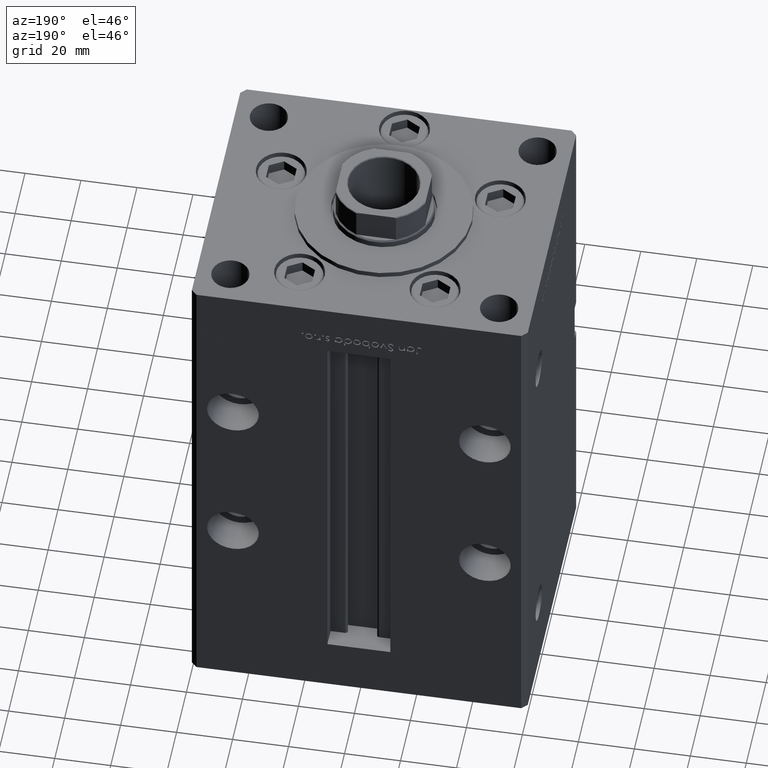
[diagram: clean part render]
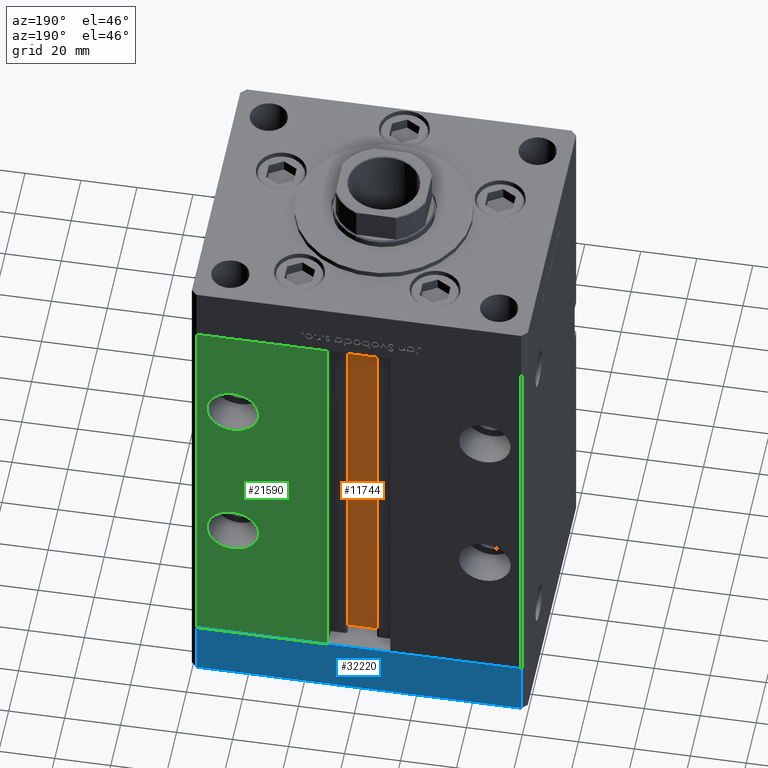
[diagram: same view with three faces highlighted in distinct colors, each labeled with its STEP entity id]
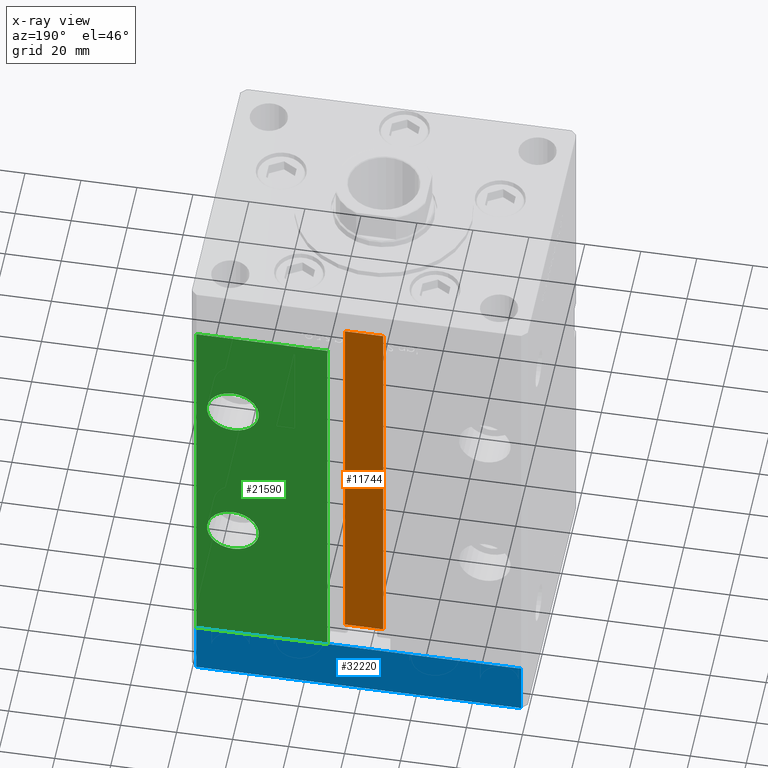
[diagram: x-ray of the same camera — body ghosted, the three highlighted faces saturated]
A machine part, auxiliary view with three faces highlighted in distinct colors.
The next image is the same camera in x-ray (body ghosted, the three faces saturated) — at least one of them is partly hidden behind the body in this view.
Their STEP definitions:

[orange] entity #11744 — the highlighted planar face has unit normal (0, -1, 0).
#112 = LINE ( 'NONE', #41957, #423 ) ;
#423 = VECTOR ( 'NONE', #5182, 1000.000000000000000 ) ;
#1107 = CARTESIAN_POINT ( 'NONE',  ( 6.876153656360465050, 40.49999999999987210, 0.000000000000000000 ) ) ;
#2760 = VECTOR ( 'NONE', #50480, 1000.000000000000000 ) ;
#3483 = VERTEX_POINT ( 'NONE', #31928 ) ;
#4728 = LINE ( 'NONE', #28887, #45745 ) ;
#5182 = DIRECTION ( 'NONE',  ( -1.000000000000000000, 0.000000000000000000, 0.000000000000000000 ) ) ;
#8780 = LINE ( 'NONE', #9050, #9660 ) ;
#9050 = CARTESIAN_POINT ( 'NONE',  ( -6.876153656360465050, 40.49999999999987210, 0.000000000000000000 ) ) ;
#9250 = CARTESIAN_POINT ( 'NONE',  ( 6.876153656360465050, 40.49999999999987210, 0.000000000000000000 ) ) ;
#9660 = VECTOR ( 'NONE', #38020, 1000.000000000000000 ) ;
#11744 = ADVANCED_FACE ( 'NONE', ( #13292 ), #45480, .F. ) ;
#12663 = CARTESIAN_POINT ( 'NONE',  ( 6.876153656360465050, 40.49999999999987210, 148.5000000000000000 ) ) ;
#12764 = DIRECTION ( 'NONE',  ( 0.000000000000000000, -1.000000000000000000, -0.000000000000000000 ) ) ;
#13292 = FACE_OUTER_BOUND ( 'NONE', #41095, .T. ) ;
#14703 = ORIENTED_EDGE ( 'NONE', *, *, #39358, .T. ) ;
#14847 = CARTESIAN_POINT ( 'NONE',  ( -6.876153656360465050, 40.49999999999987210, 148.5000000000000000 ) ) ;
#15951 = EDGE_CURVE ( 'NONE', #33380, #29560, #112, .T. ) ;
#21718 = AXIS2_PLACEMENT_3D ( 'NONE', #9250, #12764, #25631 ) ;
#23610 = ORIENTED_EDGE ( 'NONE', *, *, #15951, .F. ) ;
#24729 = ORIENTED_EDGE ( 'NONE', *, *, #41808, .F. ) ;
#25300 = LINE ( 'NONE', #1107, #2760 ) ;
#25631 = DIRECTION ( 'NONE',  ( 0.000000000000000000, 0.000000000000000000, -1.000000000000000000 ) ) ;
#25910 = DIRECTION ( 'NONE',  ( -0.000000000000000000, -0.000000000000000000, 1.000000000000000000 ) ) ;
#28887 = CARTESIAN_POINT ( 'NONE',  ( 6.876153656360465050, 40.49999999999987210, 0.000000000000000000 ) ) ;
#29560 = VERTEX_POINT ( 'NONE', #14847 ) ;
#31928 = CARTESIAN_POINT ( 'NONE',  ( -6.876153656360465050, 40.49999999999987210, 0.000000000000000000 ) ) ;
#33380 = VERTEX_POINT ( 'NONE', #12663 ) ;
#37453 = EDGE_CURVE ( 'NONE', #3483, #44850, #25300, .T. ) ;
#38020 = DIRECTION ( 'NONE',  ( -0.000000000000000000, -0.000000000000000000, 1.000000000000000000 ) ) ;
#39358 = EDGE_CURVE ( 'NONE', #3483, #29560, #8780, .T. ) ;
#41095 = EDGE_LOOP ( 'NONE', ( #24729, #48145, #14703, #23610 ) ) ;
#41808 = EDGE_CURVE ( 'NONE', #44850, #33380, #4728, .T. ) ;
#41957 = CARTESIAN_POINT ( 'NONE',  ( 0.000000000000000000, 40.49999999999987210, 148.5000000000000000 ) ) ;
#44850 = VERTEX_POINT ( 'NONE', #45949 ) ;
#45480 = PLANE ( 'NONE',  #21718 ) ;
#45745 = VECTOR ( 'NONE', #25910, 1000.000000000000000 ) ;
#45949 = CARTESIAN_POINT ( 'NONE',  ( 6.876153656360465050, 40.49999999999987210, 0.000000000000000000 ) ) ;
#48145 = ORIENTED_EDGE ( 'NONE', *, *, #37453, .F. ) ;
#50480 = DIRECTION ( 'NONE',  ( 1.000000000000000000, -0.000000000000000000, -0.000000000000000000 ) ) ;

[blue] entity #32220 — the highlighted planar face has unit normal (-0, 1, 0).
#1136 = DIRECTION ( 'NONE',  ( -1.000000000000000000, -2.392722035830079958E-16, 0.000000000000000000 ) ) ;
#1293 = ORIENTED_EDGE ( 'NONE', *, *, #30497, .T. ) ;
#4270 = VERTEX_POINT ( 'NONE', #6121 ) ;
#4898 = CARTESIAN_POINT ( 'NONE',  ( 57.99999999999993605, 51.00000000000000711, -20.00000000000000000 ) ) ;
#4912 = DIRECTION ( 'NONE',  ( -2.392722035830079958E-16, 1.000000000000000000, 0.000000000000000000 ) ) ;
#6121 = CARTESIAN_POINT ( 'NONE',  ( 57.99999999999993605, 51.00000000000000711, 0.000000000000000000 ) ) ;
#6587 = LINE ( 'NONE', #18921, #6769 ) ;
#6769 = VECTOR ( 'NONE', #31518, 1000.000000000000000 ) ;
#7100 = EDGE_LOOP ( 'NONE', ( #41632, #37600, #1293, #47973 ) ) ;
#7399 = VERTEX_POINT ( 'NONE', #17998 ) ;
#7578 = DIRECTION ( 'NONE',  ( 0.000000000000000000, 0.000000000000000000, 1.000000000000000000 ) ) ;
#8937 = PLANE ( 'NONE',  #31020 ) ;
#11324 = VECTOR ( 'NONE', #44509, 1000.000000000000000 ) ;
#12976 = VECTOR ( 'NONE', #46977, 1000.000000000000000 ) ;
#13811 = VERTEX_POINT ( 'NONE', #47923 ) ;
#16465 = CARTESIAN_POINT ( 'NONE',  ( 57.99999999999993605, 51.00000000000000711, -20.00000000000000000 ) ) ;
#17998 = CARTESIAN_POINT ( 'NONE',  ( -57.99999999999999289, 50.99999999999997868, 0.000000000000000000 ) ) ;
#18495 = VECTOR ( 'NONE', #7578, 1000.000000000000000 ) ;
#18921 = CARTESIAN_POINT ( 'NONE',  ( 57.99999999999993605, 51.00000000000000711, 0.000000000000000000 ) ) ;
#23986 = EDGE_CURVE ( 'NONE', #4270, #7399, #6587, .T. ) ;
#27620 = LINE ( 'NONE', #43987, #11324 ) ;
#30497 = EDGE_CURVE ( 'NONE', #48437, #13811, #38164, .T. ) ;
#31020 = AXIS2_PLACEMENT_3D ( 'NONE', #16465, #4912, #1136 ) ;
#31518 = DIRECTION ( 'NONE',  ( -1.000000000000000000, -2.392722035830079958E-16, 0.000000000000000000 ) ) ;
#32220 = ADVANCED_FACE ( 'NONE', ( #41681 ), #8937, .T. ) ;
#32849 = EDGE_CURVE ( 'NONE', #13811, #7399, #27620, .T. ) ;
#36569 = CARTESIAN_POINT ( 'NONE',  ( 57.99999999999993605, 51.00000000000000711, -20.00000000000000000 ) ) ;
#37600 = ORIENTED_EDGE ( 'NONE', *, *, #51899, .F. ) ;
#38164 = LINE ( 'NONE', #4898, #12976 ) ;
#41632 = ORIENTED_EDGE ( 'NONE', *, *, #23986, .F. ) ;
#41681 = FACE_OUTER_BOUND ( 'NONE', #7100, .T. ) ;
#42061 = CARTESIAN_POINT ( 'NONE',  ( 57.99999999999993605, 51.00000000000000711, -20.00000000000000000 ) ) ;
#43987 = CARTESIAN_POINT ( 'NONE',  ( -57.99999999999999289, 50.99999999999997868, -20.00000000000000000 ) ) ;
#44509 = DIRECTION ( 'NONE',  ( 0.000000000000000000, 0.000000000000000000, 1.000000000000000000 ) ) ;
#46977 = DIRECTION ( 'NONE',  ( -1.000000000000000000, -2.392722035830079958E-16, 0.000000000000000000 ) ) ;
#47923 = CARTESIAN_POINT ( 'NONE',  ( -57.99999999999999289, 50.99999999999997868, -20.00000000000000000 ) ) ;
#47973 = ORIENTED_EDGE ( 'NONE', *, *, #32849, .T. ) ;
#48437 = VERTEX_POINT ( 'NONE', #42061 ) ;
#49170 = LINE ( 'NONE', #36569, #18495 ) ;
#51899 = EDGE_CURVE ( 'NONE', #48437, #4270, #49170, .T. ) ;

[green] entity #21590 — the highlighted planar face has unit normal (0, -1, 0).
#101 = CARTESIAN_POINT ( 'NONE',  ( 11.24999999999999822, 51.00000000000000711, 0.000000000000000000 ) ) ;
#833 = ORIENTED_EDGE ( 'NONE', *, *, #4647, .F. ) ;
#1119 = EDGE_CURVE ( 'NONE', #52033, #38152, #19745, .T. ) ;
#2394 = ORIENTED_EDGE ( 'NONE', *, *, #51097, .T. ) ;
#3144 = LINE ( 'NONE', #43938, #9742 ) ;
#3646 = AXIS2_PLACEMENT_3D ( 'NONE', #8395, #37892, #45415 ) ;
#4085 = CARTESIAN_POINT ( 'NONE',  ( 11.24999999999999112, 51.00000000000000711, 148.5000000000000000 ) ) ;
#4647 = EDGE_CURVE ( 'NONE', #51425, #15536, #28529, .T. ) ;
#5456 = EDGE_CURVE ( 'NONE', #15536, #51425, #19976, .T. ) ;
#6621 = VERTEX_POINT ( 'NONE', #21686 ) ;
#6864 = EDGE_CURVE ( 'NONE', #38152, #49757, #3144, .T. ) ;
#7014 = CARTESIAN_POINT ( 'NONE',  ( 57.99999999999999289, 51.00000000000000711, 0.000000000000000000 ) ) ;
#7310 = DIRECTION ( 'NONE',  ( 0.000000000000000000, 0.000000000000000000, 1.000000000000000000 ) ) ;
#7406 = DIRECTION ( 'NONE',  ( 1.000000000000000000, 0.000000000000000000, 0.000000000000000000 ) ) ;
#7881 = DIRECTION ( 'NONE',  ( -1.000000000000000000, 0.000000000000000000, 0.000000000000000000 ) ) ;
#8147 = ORIENTED_EDGE ( 'NONE', *, *, #8660, .T. ) ;
#8395 = CARTESIAN_POINT ( 'NONE',  ( 45.00000000000000000, 51.00000000000000711, 111.5000000000000000 ) ) ;
#8660 = EDGE_CURVE ( 'NONE', #49757, #6621, #24531, .T. ) ;
#8874 = PLANE ( 'NONE',  #49598 ) ;
#9742 = VECTOR ( 'NONE', #51987, 1000.000000000000000 ) ;
#10961 = DIRECTION ( 'NONE',  ( 0.000000000000000000, 0.000000000000000000, -1.000000000000000000 ) ) ;
#11391 = CIRCLE ( 'NONE', #29393, 9.250000000000001776 ) ;
#12266 = VERTEX_POINT ( 'NONE', #22184 ) ;
#12990 = ORIENTED_EDGE ( 'NONE', *, *, #21310, .F. ) ;
#14547 = DIRECTION ( 'NONE',  ( 0.000000000000000000, 0.000000000000000000, -1.000000000000000000 ) ) ;
#15536 = VERTEX_POINT ( 'NONE', #31566 ) ;
#19501 = DIRECTION ( 'NONE',  ( -0.000000000000000000, -0.000000000000000000, 1.000000000000000000 ) ) ;
#19745 = LINE ( 'NONE', #39883, #26668 ) ;
#19976 = CIRCLE ( 'NONE', #22520, 9.249999999999994671 ) ;
#20826 = EDGE_LOOP ( 'NONE', ( #52675, #833 ) ) ;
#21310 = EDGE_CURVE ( 'NONE', #12266, #43337, #31532, .T. ) ;
#21590 = ADVANCED_FACE ( 'NONE', ( #45626, #40830, #37840 ), #8874, .F. ) ;
#21686 = CARTESIAN_POINT ( 'NONE',  ( 11.24999999999999822, 51.00000000000000711, 0.000000000000000000 ) ) ;
#22184 = CARTESIAN_POINT ( 'NONE',  ( 45.00000000000000000, 51.00000000000000711, 60.75000000000000000 ) ) ;
#22520 = AXIS2_PLACEMENT_3D ( 'NONE', #48075, #27422, #7310 ) ;
#24531 = LINE ( 'NONE', #44637, #50035 ) ;
#25255 = DIRECTION ( 'NONE',  ( 0.000000000000000000, -1.000000000000000000, 0.000000000000000000 ) ) ;
#25866 = EDGE_LOOP ( 'NONE', ( #8147, #2394, #37146, #40848 ) ) ;
#26668 = VECTOR ( 'NONE', #7406, 1000.000000000000000 ) ;
#27422 = DIRECTION ( 'NONE',  ( 0.000000000000000000, 1.000000000000000000, 0.000000000000000000 ) ) ;
#28529 = CIRCLE ( 'NONE', #3646, 9.249999999999994671 ) ;
#29393 = AXIS2_PLACEMENT_3D ( 'NONE', #51740, #31336, #10961 ) ;
#29567 = ORIENTED_EDGE ( 'NONE', *, *, #39136, .F. ) ;
#31324 = VECTOR ( 'NONE', #19501, 1000.000000000000000 ) ;
#31336 = DIRECTION ( 'NONE',  ( 0.000000000000000000, 1.000000000000000000, -0.000000000000000000 ) ) ;
#31532 = CIRCLE ( 'NONE', #49566, 9.250000000000001776 ) ;
#31566 = CARTESIAN_POINT ( 'NONE',  ( 45.00000000000000000, 51.00000000000000711, 120.7500000000000000 ) ) ;
#34771 = CARTESIAN_POINT ( 'NONE',  ( 57.99999999999999289, 51.00000000000000711, 148.5000000000000000 ) ) ;
#35204 = CARTESIAN_POINT ( 'NONE',  ( 45.00000000000000000, 51.00000000000000711, 51.50000000000000000 ) ) ;
#35414 = CARTESIAN_POINT ( 'NONE',  ( 45.00000000000000000, 51.00000000000000711, 102.2500000000000142 ) ) ;
#37064 = CARTESIAN_POINT ( 'NONE',  ( -11.24999999999999822, 51.00000000000000711, 148.5000000000000000 ) ) ;
#37111 = EDGE_LOOP ( 'NONE', ( #12990, #29567 ) ) ;
#37146 = ORIENTED_EDGE ( 'NONE', *, *, #1119, .T. ) ;
#37335 = DIRECTION ( 'NONE',  ( 0.000000000000000000, -0.000000000000000000, -1.000000000000000000 ) ) ;
#37840 = FACE_OUTER_BOUND ( 'NONE', #25866, .T. ) ;
#37892 = DIRECTION ( 'NONE',  ( 0.000000000000000000, 1.000000000000000000, 0.000000000000000000 ) ) ;
#38152 = VERTEX_POINT ( 'NONE', #34771 ) ;
#39136 = EDGE_CURVE ( 'NONE', #43337, #12266, #11391, .T. ) ;
#39883 = CARTESIAN_POINT ( 'NONE',  ( -11.24999999999999822, 51.00000000000000711, 148.5000000000000000 ) ) ;
#39906 = LINE ( 'NONE', #101, #31324 ) ;
#40830 = FACE_BOUND ( 'NONE', #20826, .T. ) ;
#40848 = ORIENTED_EDGE ( 'NONE', *, *, #6864, .T. ) ;
#43337 = VERTEX_POINT ( 'NONE', #44222 ) ;
#43938 = CARTESIAN_POINT ( 'NONE',  ( 57.99999999999999289, 51.00000000000000711, 148.5000000000000000 ) ) ;
#44222 = CARTESIAN_POINT ( 'NONE',  ( 45.00000000000000000, 51.00000000000000711, 42.24999999999999289 ) ) ;
#44637 = CARTESIAN_POINT ( 'NONE',  ( -11.24999999999999822, 51.00000000000000711, 0.000000000000000000 ) ) ;
#45415 = DIRECTION ( 'NONE',  ( 0.000000000000000000, 0.000000000000000000, 1.000000000000000000 ) ) ;
#45626 = FACE_BOUND ( 'NONE', #37111, .T. ) ;
#48075 = CARTESIAN_POINT ( 'NONE',  ( 45.00000000000000000, 51.00000000000000711, 111.5000000000000000 ) ) ;
#49566 = AXIS2_PLACEMENT_3D ( 'NONE', #35204, #51572, #14547 ) ;
#49598 = AXIS2_PLACEMENT_3D ( 'NONE', #37064, #25255, #37335 ) ;
#49757 = VERTEX_POINT ( 'NONE', #7014 ) ;
#50035 = VECTOR ( 'NONE', #7881, 1000.000000000000000 ) ;
#51097 = EDGE_CURVE ( 'NONE', #6621, #52033, #39906, .T. ) ;
#51425 = VERTEX_POINT ( 'NONE', #35414 ) ;
#51572 = DIRECTION ( 'NONE',  ( 0.000000000000000000, 1.000000000000000000, -0.000000000000000000 ) ) ;
#51740 = CARTESIAN_POINT ( 'NONE',  ( 45.00000000000000000, 51.00000000000000711, 51.50000000000000000 ) ) ;
#51987 = DIRECTION ( 'NONE',  ( -0.000000000000000000, -0.000000000000000000, -1.000000000000000000 ) ) ;
#52033 = VERTEX_POINT ( 'NONE', #4085 ) ;
#52675 = ORIENTED_EDGE ( 'NONE', *, *, #5456, .F. ) ;